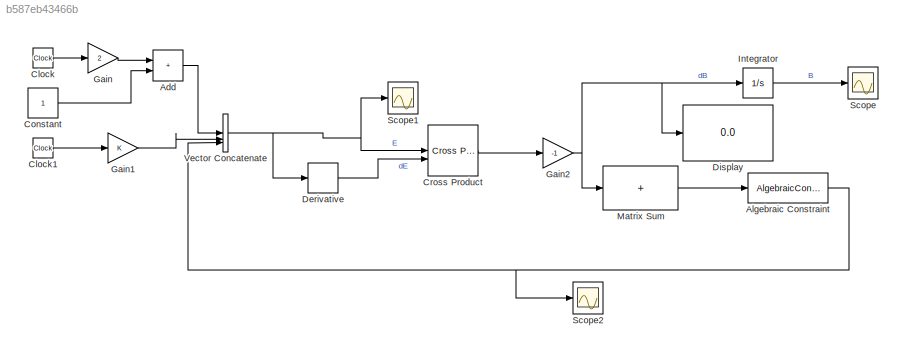
MODEL slx_b587eb43466b
KIND model
CONFIG AbsTol = auto
CONFIG EnableMultiTasking = off
CONFIG FixedStep = auto
CONFIG MaxStep = auto
CONFIG MinStep = auto
CONFIG RelTol = 1e-3
CONFIG SampleTimeConstraint = Unconstrained
CONFIG SolverName = VariableStepAuto
CONFIG StartTime = 0.0
CONFIG StopTime = 10.0
BLOCK [Sum] Add
  IconShape = rectangular
BLOCK [AlgebraicConstraint] Algebraic Constraint
BLOCK [Clock] Clock
BLOCK [Clock] Clock1
BLOCK [Constant] Constant
BLOCK [Reference] Cross Product  REF=matrix_library/Cross Product
  LibrarySourceBlock = simulink/Matrix\nOperations/Cross Product
  SourceBlock = matrix_library/Cross Product
  SourceType = CrossProduct
BLOCK [Derivative] Derivative
BLOCK [Display] Display
  Decimation = 1
BLOCK [Gain] Gain
  Gain = 2
BLOCK [Gain] Gain1
BLOCK [Gain] Gain2
  Gain = -1
BLOCK [Integrator] Integrator
  InitialCondition = [7,4,2]
BLOCK [Sum] Matrix Sum
  IconShape = rectangular
  Inputs = +
BLOCK [Scope] Scope
  Floating = off
  NumInputPorts = 1
  ScopeSpecificationString = Simulink.scopes.TimeScopeBlockCfg('CurrentConfiguration', extmgr.ConfigurationSet(extmgr.Configuration('Core','General UI',true),extmgr.Configuration('Core','Source UI',true),extmgr.Configuration('Sources','WiredSimulink',true),extmgr.Configuration('Visuals','Time Domain',true,'SerializedDisplays',{struct('MinYLimReal','-10.72721','MaxYLimReal','16.72721','YLabelReal','','MinYLimMag','0.00000','Ma...<+1396ch>
BLOCK [Scope] Scope1
  Floating = off
  NumInputPorts = 1
  ScopeSpecificationString = Simulink.scopes.TimeScopeBlockCfg('CurrentConfiguration', extmgr.ConfigurationSet(extmgr.Configuration('Core','General UI',true),extmgr.Configuration('Core','Source UI',true),extmgr.Configuration('Sources','WiredSimulink',true,'DataLoggingVariableName','ScopeData1'),extmgr.Configuration('Visuals','Time Domain',true,'SerializedDisplays',{struct('MinYLimReal','-2.625','MaxYLimReal','23.625','YLabelR...<+1421ch>
BLOCK [Scope] Scope2
  Floating = off
  NumInputPorts = 1
  ScopeSpecificationString = Simulink.scopes.TimeScopeBlockCfg('CurrentConfiguration', extmgr.ConfigurationSet(extmgr.Configuration('Core','General UI',true),extmgr.Configuration('Core','Source UI',true),extmgr.Configuration('Sources','WiredSimulink',true,'DataLoggingVariableName','ScopeData2'),extmgr.Configuration('Visuals','Time Domain',true,'SerializedDisplays',{struct('MinYLimReal','-1.25','MaxYLimReal','11.25','YLabelRea...<+1420ch>
BLOCK [Concatenate] Vector Concatenate
  NumInputs = 3
LINE Add:1 -> Vector Concatenate:1
NET Algebraic Constraint:1 -> Scope2:1, Vector Concatenate:3
LINE Clock1:1 -> Gain1:1
LINE Clock:1 -> Gain:1
LINE Constant:1 -> Add:2
LINE Cross Product:1 -> Gain2:1
LINE Derivative:1 -> Cross Product:2
LINE Gain1:1 -> Vector Concatenate:2
NET Gain2:1 -> Display:1, Integrator:1, Matrix Sum:1
LINE Gain:1 -> Add:1
LINE Integrator:1 -> Scope:1
LINE Matrix Sum:1 -> Algebraic Constraint:1
NET Vector Concatenate:1 -> Cross Product:1, Derivative:1, Scope1:1
note: NET lines group one-source signal fan-out (src -> all destinations, sorted); 1:1 wires keep LINE
